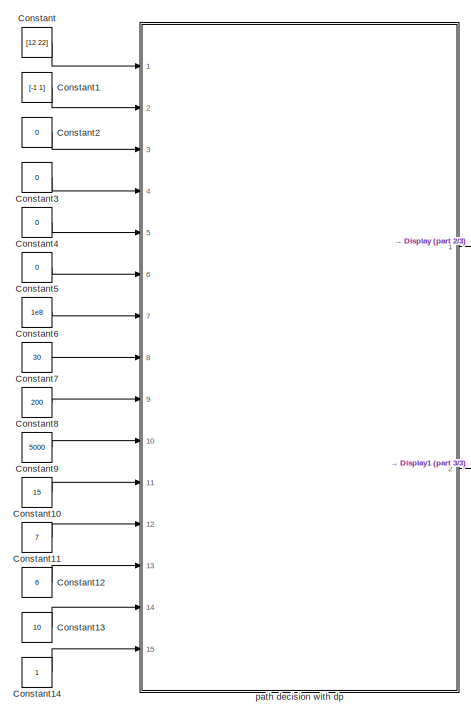
[diagram: root canvas - part 1/3, top left region]
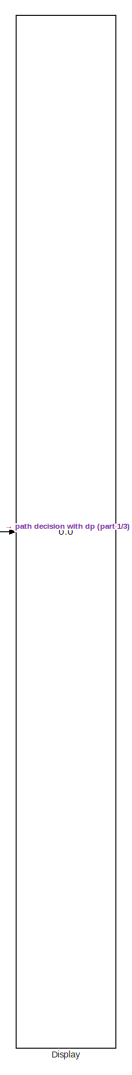
[diagram: root canvas - part 2/3, middle right region]
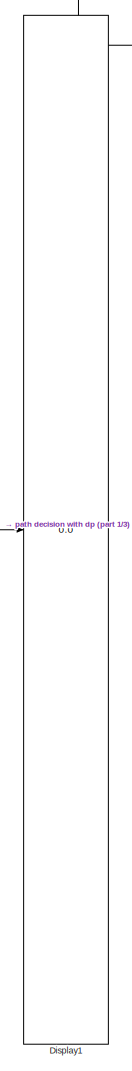
[diagram: root canvas - part 3/3, central region]
MODEL slx_f064e2f661c1
KIND model
CONFIG AbsTol = auto
CONFIG EnableMultiTasking = off
CONFIG FixedStep = auto
CONFIG MaxStep = auto
CONFIG MinStep = auto
CONFIG RelTol = 1e-3
CONFIG SampleTimeConstraint = Unconstrained
CONFIG SolverName = VariableStepAuto
CONFIG StartTime = 0.0
CONFIG StopTime = 10.0
BLOCK [Constant] Constant
  Value = [12 22]
BLOCK [Constant] Constant1
  Value = [-1 1]
BLOCK [Constant] Constant10
  Value = 15
BLOCK [Constant] Constant11
  Value = 7
BLOCK [Constant] Constant12
  Value = 6
BLOCK [Constant] Constant13
  Value = 10
BLOCK [Constant] Constant14
BLOCK [Constant] Constant2
  Value = 0
BLOCK [Constant] Constant3
  Value = 0
BLOCK [Constant] Constant4
  Value = 0
BLOCK [Constant] Constant5
  Value = 0
BLOCK [Constant] Constant6
  Value = 1e8
BLOCK [Constant] Constant7
  Value = 30
BLOCK [Constant] Constant8
  Value = 200
BLOCK [Constant] Constant9
  Value = 5000
BLOCK [Display] Display
  Decimation = 1
  Ports = [1]
BLOCK [Display] Display1
  Decimation = 1
  Ports = [1]
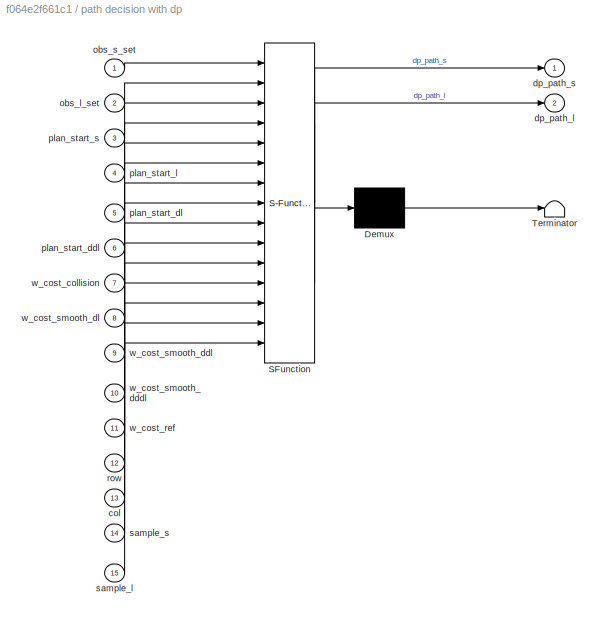
BLOCK [SubSystem] path decision with dp
  ErrorFcn = Stateflow.Translate.translate
  PermitHierarchicalResolution = ExplicitOnly
  Ports = [15, 2]
  RequestExecContextInheritance = off
  SFBlockType = MATLAB Function
  TreatAsAtomicUnit = on
BLOCK [Demux] path decision with dp/ Demux 
  Outputs = 1
  Ports = [1, 1]
BLOCK [S-Function] path decision with dp/ SFunction 
  EnableBusSupport = on
  FunctionName = sf_sfun
  PortCounts = [15 3]
  Ports = [15, 3]
  SFcnIsStateOwnerBlock = off
  SFunctionDeploymentMode = off
  Tag = Stateflow S-Function 33
BLOCK [Terminator] path decision with dp/ Terminator 
BLOCK [Inport] path decision with dp/col
  Port = 13
BLOCK [Outport] path decision with dp/dp_path_l
  Port = 2
BLOCK [Outport] path decision with dp/dp_path_s
BLOCK [Inport] path decision with dp/obs_l_set
  Port = 2
BLOCK [Inport] path decision with dp/obs_s_set
BLOCK [Inport] path decision with dp/plan_start_ddl
  Port = 6
BLOCK [Inport] path decision with dp/plan_start_dl
  Port = 5
BLOCK [Inport] path decision with dp/plan_start_l
  Port = 4
BLOCK [Inport] path decision with dp/plan_start_s
  Port = 3
BLOCK [Inport] path decision with dp/row
  Port = 12
BLOCK [Inport] path decision with dp/sample_l
  Port = 15
BLOCK [Inport] path decision with dp/sample_s
  Port = 14
BLOCK [Inport] path decision with dp/w_cost_collision
  Port = 7
BLOCK [Inport] path decision with dp/w_cost_ref
  Port = 11
BLOCK [Inport] path decision with dp/w_cost_smooth_dddl
  Port = 10
BLOCK [Inport] path decision with dp/w_cost_smooth_ddl
  Port = 9
BLOCK [Inport] path decision with dp/w_cost_smooth_dl
  Port = 8
LINE Constant10:1 -> path decision with dp:11
LINE Constant11:1 -> path decision with dp:12
LINE Constant12:1 -> path decision with dp:13
LINE Constant13:1 -> path decision with dp:14
LINE Constant14:1 -> path decision with dp:15
LINE Constant1:1 -> path decision with dp:2
LINE Constant2:1 -> path decision with dp:3
LINE Constant3:1 -> path decision with dp:4
LINE Constant4:1 -> path decision with dp:5
LINE Constant5:1 -> path decision with dp:6
LINE Constant6:1 -> path decision with dp:7
LINE Constant7:1 -> path decision with dp:8
LINE Constant8:1 -> path decision with dp:9
LINE Constant9:1 -> path decision with dp:10
LINE Constant:1 -> path decision with dp:1
LINE path decision with dp:1 -> Display:1
LINE path decision with dp:2 -> Display1:1
CHART path decision with dp states=1 transitions=1
  STATE_LABEL 'eML_blk_kernel()'
  STATE_LABEL 'SCRIPT:\nfunction [dp_path_s,dp_path_l] = fcn(obs_s_set,obs_l_set,plan_start_s,plan_start_l,plan_start_dl,plan_start_ddl,...\n    w_cost_collision,w_cost_smooth_dl,w_cost_smooth_ddl,w_cost_smooth_dddl,w_cost_ref,row,col,sample_s,sample_l)\n% 该函数为路径决策算法：动态规划的主函数\n% 输入: obs_s_set,obs_l_set 筛选后的障碍物sl\n%     plan_start_s,plan_start_l,plan_start_dl,plan_start_ddl 规划起点信息\n%     w_cost_obs,w_cost_smooth_dl,w_c...<+3608ch>'
CHART  states=0 transitions=0
